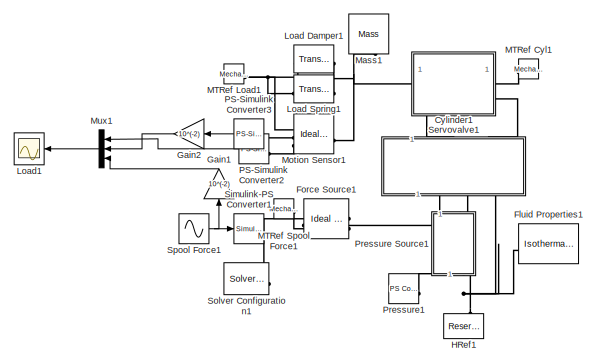
[diagram: root canvas - part 1/2, middle right region]
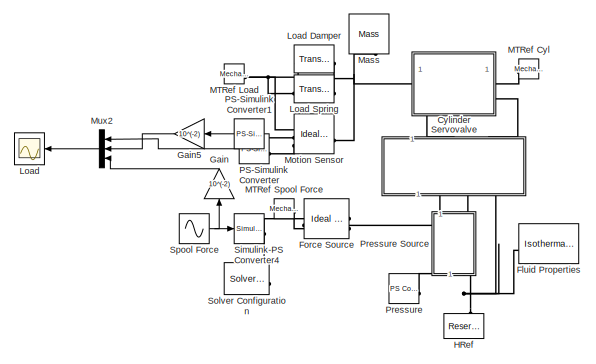
[diagram: root canvas - part 2/2, bottom left region]
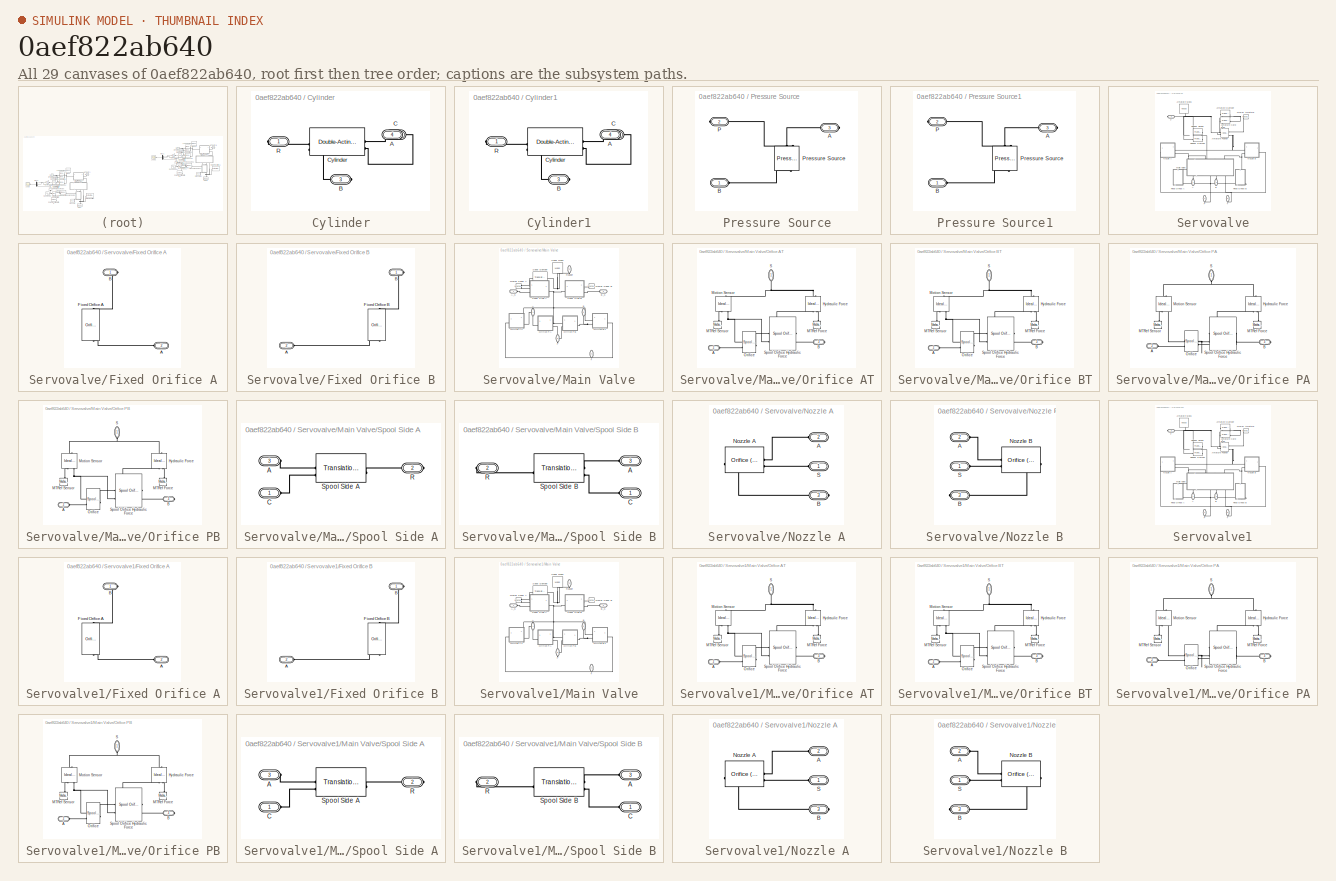
[diagram: thumbnail index - all 29 canvases of the model, root first then tree order]
MODEL slx_0aef822ab640
KIND model
CONFIG AbsTol = auto
CONFIG EnableMultiTasking = off
CONFIG FixedStep = auto
CONFIG MaxStep = auto
CONFIG MinStep = auto
CONFIG RelTol = 1e-3
CONFIG SampleTimeConstraint = Unconstrained
CONFIG SolverName = VariableStepAuto
CONFIG StartTime = 0.0
CONFIG StopTime = 15
BLOCK [Reference]  Fluid Properties  REF=fl_lib/Isothermal Liquid/Utilities/Isothermal Liquid
Properties (IL)
  Commented = on
  LibrarySourceBlock = fl_lib/Isothermal Liquid/Utilities/Isothermal Liquid Properties (IL)
  SourceBlock = fl_lib/Isothermal Liquid/Utilities/Isothermal Liquid\nProperties (IL)
  SourceType = Isothermal Liquid\nProperties (IL)
  Tag = Factory Generic
BLOCK [Reference]  Fluid Properties1  REF=fl_lib/Isothermal Liquid/Utilities/Isothermal Liquid
Properties (IL)
  LibrarySourceBlock = fl_lib/Isothermal Liquid/Utilities/Isothermal Liquid Properties (IL)
  SourceBlock = fl_lib/Isothermal Liquid/Utilities/Isothermal Liquid\nProperties (IL)
  SourceType = Isothermal Liquid\nProperties (IL)
  Tag = Factory Generic
BLOCK [SubSystem] Cylinder
  Commented = on
BLOCK [PMIOPort] Cylinder/A
  Port = 4
  Side = Left
BLOCK [PMIOPort] Cylinder/B
  Port = 3
  Side = Right
BLOCK [PMIOPort] Cylinder/C
  Port = 2
  Side = Left
BLOCK [Reference] Cylinder/Cylinder  REF=SimscapeFluids_lib/Isothermal Liquid/Actuators/Double-Acting
Actuator (IL)
  LibrarySourceBlock = SimscapeFluids_lib/Isothermal Liquid/Actuators/Double-Acting Actuator (IL)
  SourceBlock = SimscapeFluids_lib/Isothermal Liquid/Actuators/Double-Acting\nActuator (IL)
  SourceType = Double-Acting\nActuator (IL)
  Tag = Factory Generic
BLOCK [PMIOPort] Cylinder/R
  Side = Right
BLOCK [SubSystem] Cylinder1
BLOCK [PMIOPort] Cylinder1/A
  Port = 4
  Side = Left
BLOCK [PMIOPort] Cylinder1/B
  Port = 3
  Side = Right
BLOCK [PMIOPort] Cylinder1/C
  Port = 2
  Side = Left
BLOCK [Reference] Cylinder1/Cylinder  REF=SimscapeFluids_lib/Isothermal Liquid/Actuators/Double-Acting
Actuator (IL)
  LibrarySourceBlock = SimscapeFluids_lib/Isothermal Liquid/Actuators/Double-Acting Actuator (IL)
  SourceBlock = SimscapeFluids_lib/Isothermal Liquid/Actuators/Double-Acting\nActuator (IL)
  SourceType = Double-Acting\nActuator (IL)
  Tag = Factory Generic
BLOCK [PMIOPort] Cylinder1/R
  Side = Right
BLOCK [Reference] Force Source  REF=fl_lib/Mechanical/Mechanical Sources/Ideal Force Source
  Commented = on
  SourceBlock = fl_lib/Mechanical/Mechanical Sources/Ideal Force Source
  SourceType = Ideal Force Source
  Tag = Factory Generic
BLOCK [Reference] Force Source1  REF=fl_lib/Mechanical/Mechanical Sources/Ideal Force Source
  SourceBlock = fl_lib/Mechanical/Mechanical Sources/Ideal Force Source
  SourceType = Ideal Force Source
  Tag = Factory Generic
BLOCK [Gain] Gain
  Commented = on
  Gain = 10^(-2)
  NameLocation = right
BLOCK [Gain] Gain1
  Gain = 10^(-2)
  NameLocation = right
BLOCK [Gain] Gain2
  Gain = 10^(-2)
  NameLocation = top
BLOCK [Gain] Gain5
  Commented = on
  Gain = 10^(-2)
  NameLocation = top
BLOCK [Reference] HRef  REF=fl_lib/Isothermal Liquid/Elements/Reservoir (IL)
  Commented = on
  NameLocation = right
  SourceBlock = fl_lib/Isothermal Liquid/Elements/Reservoir (IL)
  SourceType = Reservoir (IL)
  Tag = Factory Generic
BLOCK [Reference] HRef1  REF=fl_lib/Isothermal Liquid/Elements/Reservoir (IL)
  NameLocation = right
  SourceBlock = fl_lib/Isothermal Liquid/Elements/Reservoir (IL)
  SourceType = Reservoir (IL)
  Tag = Factory Generic
BLOCK [Scope] Load
  Commented = on
  Floating = off
  NumInputPorts = 1
  ScopeSpecificationString = Simulink.scopes.TimeScopeBlockCfg('CurrentConfiguration', extmgr.ConfigurationSet(extmgr.Configuration('Core','General UI',true,'MessageLogAutoOpenMode','for warn/fail messages','ShowCloseAll',true,'ShowBringAllForward',true),extmgr.Configuration('Core','Source UI',true,'PlaybackToolbar',true),extmgr.Configuration('Sources','WiredSimulink',true,'PointsPerSignal',50000,'DataLoggingMaxPoints','50000...<+2122ch>
BLOCK [Reference] Load Damper  REF=fl_lib/Mechanical/Translational
Elements/Translational Damper
  Commented = on
  NameLocation = top
  SourceBlock = fl_lib/Mechanical/Translational\nElements/Translational Damper
  SourceType = Translational Damper
  Tag = Factory Generic
BLOCK [Reference] Load Damper1  REF=fl_lib/Mechanical/Translational
Elements/Translational Damper
  NameLocation = top
  SourceBlock = fl_lib/Mechanical/Translational\nElements/Translational Damper
  SourceType = Translational Damper
  Tag = Factory Generic
BLOCK [Reference] Load Spring  REF=fl_lib/Mechanical/Translational
Elements/Translational Spring
  Commented = on
  SourceBlock = fl_lib/Mechanical/Translational\nElements/Translational Spring
  SourceType = Translational Spring
  Tag = Factory Generic
BLOCK [Reference] Load Spring1  REF=fl_lib/Mechanical/Translational
Elements/Translational Spring
  SourceBlock = fl_lib/Mechanical/Translational\nElements/Translational Spring
  SourceType = Translational Spring
  Tag = Factory Generic
BLOCK [Scope] Load1
  Floating = off
  NumInputPorts = 1
  ScopeSpecificationString = Simulink.scopes.TimeScopeBlockCfg('CurrentConfiguration', extmgr.ConfigurationSet(extmgr.Configuration('Core','General UI',true,'MessageLogAutoOpenMode','for warn/fail messages','ShowCloseAll',true,'ShowBringAllForward',true),extmgr.Configuration('Core','Source UI',true,'PlaybackToolbar',true),extmgr.Configuration('Sources','WiredSimulink',true,'PointsPerSignal',50000,'DataLoggingMaxPoints','50000...<+2161ch>
BLOCK [Reference] MTRef Cyl  REF=fl_lib/Mechanical/Translational
Elements/Mechanical
Translational
Reference
  Commented = on
  SourceBlock = fl_lib/Mechanical/Translational\nElements/Mechanical\nTranslational\nReference
  SourceType = Mechanical\nTranslational\nReference
  Tag = Factory Generic
BLOCK [Reference] MTRef Cyl1  REF=fl_lib/Mechanical/Translational
Elements/Mechanical
Translational
Reference
  SourceBlock = fl_lib/Mechanical/Translational\nElements/Mechanical\nTranslational\nReference
  SourceType = Mechanical\nTranslational\nReference
  Tag = Factory Generic
BLOCK [Reference] MTRef Load  REF=fl_lib/Mechanical/Translational
Elements/Mechanical
Translational
Reference
  Commented = on
  NameLocation = top
  SourceBlock = fl_lib/Mechanical/Translational\nElements/Mechanical\nTranslational\nReference
  SourceType = Mechanical\nTranslational\nReference
  Tag = Factory Generic
BLOCK [Reference] MTRef Load1  REF=fl_lib/Mechanical/Translational
Elements/Mechanical
Translational
Reference
  NameLocation = top
  SourceBlock = fl_lib/Mechanical/Translational\nElements/Mechanical\nTranslational\nReference
  SourceType = Mechanical\nTranslational\nReference
  Tag = Factory Generic
BLOCK [Reference] MTRef Spool Force  REF=fl_lib/Mechanical/Translational
Elements/Mechanical
Translational
Reference
  Commented = on
  SourceBlock = fl_lib/Mechanical/Translational\nElements/Mechanical\nTranslational\nReference
  SourceType = Mechanical\nTranslational\nReference
  Tag = Factory Generic
BLOCK [Reference] MTRef Spool Force1  REF=fl_lib/Mechanical/Translational
Elements/Mechanical
Translational
Reference
  SourceBlock = fl_lib/Mechanical/Translational\nElements/Mechanical\nTranslational\nReference
  SourceType = Mechanical\nTranslational\nReference
  Tag = Factory Generic
BLOCK [Reference] Mass  REF=fl_lib/Mechanical/Translational
Elements/Mass
  Commented = on
  NameLocation = right
  SourceBlock = fl_lib/Mechanical/Translational\nElements/Mass
  SourceType = Mass
  Tag = Factory Generic
BLOCK [Reference] Mass1  REF=fl_lib/Mechanical/Translational
Elements/Mass
  NameLocation = right
  SourceBlock = fl_lib/Mechanical/Translational\nElements/Mass
  SourceType = Mass
  Tag = Factory Generic
BLOCK [Reference] Motion Sensor  REF=fl_lib/Mechanical/Mechanical Sensors/Ideal Translational
Motion Sensor
  Commented = on
  SourceBlock = fl_lib/Mechanical/Mechanical Sensors/Ideal Translational\nMotion Sensor
  SourceType = Ideal Translational\nMotion Sensor
  Tag = Factory Generic
BLOCK [Reference] Motion Sensor1  REF=fl_lib/Mechanical/Mechanical Sensors/Ideal Translational
Motion Sensor
  SourceBlock = fl_lib/Mechanical/Mechanical Sensors/Ideal Translational\nMotion Sensor
  SourceType = Ideal Translational\nMotion Sensor
  Tag = Factory Generic
BLOCK [Mux] Mux1
  DisplayOption = bar
  Inputs = 3
BLOCK [Mux] Mux2
  Commented = on
  DisplayOption = bar
  Inputs = 3
BLOCK [Reference] PS-Simulink Converter  REF=nesl_utility/PS-Simulink
Converter
  Commented = on
  SourceBlock = nesl_utility/PS-Simulink\nConverter
  SourceType = PS-Simulink\nConverter
BLOCK [Reference] PS-Simulink Converter1  REF=nesl_utility/PS-Simulink
Converter
  Commented = on
  SourceBlock = nesl_utility/PS-Simulink\nConverter
  SourceType = PS-Simulink\nConverter
BLOCK [Reference] PS-Simulink Converter2  REF=nesl_utility/PS-Simulink
Converter
  SourceBlock = nesl_utility/PS-Simulink\nConverter
  SourceType = PS-Simulink\nConverter
BLOCK [Reference] PS-Simulink Converter3  REF=nesl_utility/PS-Simulink
Converter
  SourceBlock = nesl_utility/PS-Simulink\nConverter
  SourceType = PS-Simulink\nConverter
BLOCK [Reference] Pressure  REF=fl_lib/Physical Signals/Sources/PS Constant
  Commented = on
  SourceBlock = fl_lib/Physical Signals/Sources/PS Constant
  SourceType = PS Constant
BLOCK [SubSystem] Pressure Source
  Commented = on
BLOCK [PMIOPort] Pressure Source/A
  Port = 3
  Side = Right
BLOCK [PMIOPort] Pressure Source/B
  Side = Left
BLOCK [PMIOPort] Pressure Source/P
  Port = 2
  Side = Right
BLOCK [Reference] Pressure Source/Pressure Source  REF=fl_lib/Isothermal Liquid/Sources/Pressure Source (IL)
  NameLocation = left
  SourceBlock = fl_lib/Isothermal Liquid/Sources/Pressure Source (IL)
  SourceType = Pressure Source (IL)
  Tag = Factory Generic
BLOCK [SubSystem] Pressure Source1
BLOCK [PMIOPort] Pressure Source1/A
  Port = 3
  Side = Right
BLOCK [PMIOPort] Pressure Source1/B
  Side = Left
BLOCK [PMIOPort] Pressure Source1/P
  Port = 2
  Side = Right
BLOCK [Reference] Pressure Source1/Pressure Source  REF=fl_lib/Isothermal Liquid/Sources/Pressure Source (IL)
  NameLocation = left
  SourceBlock = fl_lib/Isothermal Liquid/Sources/Pressure Source (IL)
  SourceType = Pressure Source (IL)
  Tag = Factory Generic
BLOCK [Reference] Pressure1  REF=fl_lib/Physical Signals/Sources/PS Constant
  SourceBlock = fl_lib/Physical Signals/Sources/PS Constant
  SourceType = PS Constant
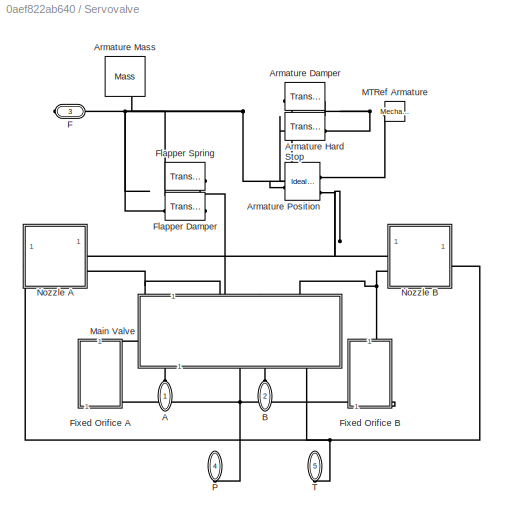
BLOCK [SubSystem] Servovalve
  Commented = on
  NameLocation = right
  Tag = PublishSubsystem
BLOCK [PMIOPort] Servovalve/A
  NameLocation = left
  Side = Left
BLOCK [Reference] Servovalve/Armature Damper  REF=fl_lib/Mechanical/Translational
Elements/Translational Damper
  NameLocation = top
  SourceBlock = fl_lib/Mechanical/Translational\nElements/Translational Damper
  SourceType = Translational Damper
  Tag = Factory Generic
BLOCK [Reference] Servovalve/Armature Hard Stop  REF=fl_lib/Mechanical/Translational
Elements/Translational Hard
Stop
  SourceBlock = fl_lib/Mechanical/Translational\nElements/Translational Hard\nStop
  SourceType = Translational Hard\nStop
  Tag = Factory Generic
BLOCK [Reference] Servovalve/Armature Mass  REF=fl_lib/Mechanical/Translational
Elements/Mass
  NameLocation = left
  SourceBlock = fl_lib/Mechanical/Translational\nElements/Mass
  SourceType = Mass
  Tag = Factory Generic
BLOCK [Reference] Servovalve/Armature Position  REF=fl_lib/Mechanical/Mechanical Sensors/Ideal Translational
Motion Sensor
  SourceBlock = fl_lib/Mechanical/Mechanical Sensors/Ideal Translational\nMotion Sensor
  SourceType = Ideal Translational\nMotion Sensor
  Tag = Factory Generic
BLOCK [PMIOPort] Servovalve/B
  NameLocation = left
  Port = 2
  Side = Left
BLOCK [PMIOPort] Servovalve/F
  Port = 3
  Side = Right
BLOCK [SubSystem] Servovalve/Fixed Orifice A
BLOCK [PMIOPort] Servovalve/Fixed Orifice A/A
  Port = 2
  Side = Left
BLOCK [PMIOPort] Servovalve/Fixed Orifice A/B
  Side = Right
BLOCK [Reference] Servovalve/Fixed Orifice A/Fixed Orifice A  REF=SimscapeFluids_lib/Isothermal Liquid/Valves & Orifices/Orifices/Orifice (IL)
  NameLocation = left
  SourceBlock = SimscapeFluids_lib/Isothermal Liquid/Valves & Orifices/Orifices/Orifice (IL)
  SourceType = Orifice (IL)
  Tag = Factory Generic
BLOCK [SubSystem] Servovalve/Fixed Orifice B
BLOCK [PMIOPort] Servovalve/Fixed Orifice B/A
  Port = 2
  Side = Left
BLOCK [PMIOPort] Servovalve/Fixed Orifice B/B
  Side = Right
BLOCK [Reference] Servovalve/Fixed Orifice B/Fixed Orifice B  REF=SimscapeFluids_lib/Isothermal Liquid/Valves & Orifices/Orifices/Orifice (IL)
  NameLocation = right
  SourceBlock = SimscapeFluids_lib/Isothermal Liquid/Valves & Orifices/Orifices/Orifice (IL)
  SourceType = Orifice (IL)
  Tag = Factory Generic
BLOCK [Reference] Servovalve/Flapper Damper  REF=fl_lib/Mechanical/Translational
Elements/Translational Damper
  SourceBlock = fl_lib/Mechanical/Translational\nElements/Translational Damper
  SourceType = Translational Damper
  Tag = Factory Generic
BLOCK [Reference] Servovalve/Flapper Spring  REF=fl_lib/Mechanical/Translational
Elements/Translational Spring
  NameLocation = top
  SourceBlock = fl_lib/Mechanical/Translational\nElements/Translational Spring
  SourceType = Translational Spring
  Tag = Factory Generic
BLOCK [Reference] Servovalve/MTRef Armature  REF=fl_lib/Mechanical/Translational
Elements/Mechanical
Translational
Reference
  NameLocation = top
  SourceBlock = fl_lib/Mechanical/Translational\nElements/Mechanical\nTranslational\nReference
  SourceType = Mechanical\nTranslational\nReference
  Tag = Factory Generic
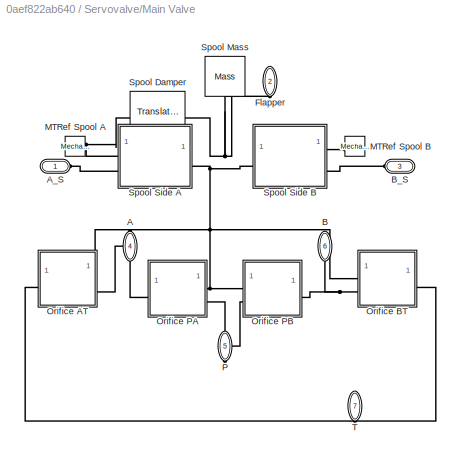
BLOCK [SubSystem] Servovalve/Main Valve
  NameLocation = left
  Tag = PublishSubsystem
BLOCK [PMIOPort] Servovalve/Main Valve/A
  NameLocation = right
  Port = 4
  Side = Right
BLOCK [PMIOPort] Servovalve/Main Valve/A_S
  Side = Left
BLOCK [PMIOPort] Servovalve/Main Valve/B
  NameLocation = left
  Port = 6
  Side = Right
BLOCK [PMIOPort] Servovalve/Main Valve/B_S
  Port = 3
  Side = Left
BLOCK [PMIOPort] Servovalve/Main Valve/Flapper
  NameLocation = right
  Port = 2
  Side = Left
BLOCK [Reference] Servovalve/Main Valve/MTRef Spool A  REF=fl_lib/Mechanical/Translational
Elements/Mechanical
Translational
Reference
  NameLocation = top
  SourceBlock = fl_lib/Mechanical/Translational\nElements/Mechanical\nTranslational\nReference
  SourceType = Mechanical\nTranslational\nReference
  Tag = Factory Generic
BLOCK [Reference] Servovalve/Main Valve/MTRef Spool B  REF=fl_lib/Mechanical/Translational
Elements/Mechanical
Translational
Reference
  NameLocation = top
  SourceBlock = fl_lib/Mechanical/Translational\nElements/Mechanical\nTranslational\nReference
  SourceType = Mechanical\nTranslational\nReference
  Tag = Factory Generic
BLOCK [SubSystem] Servovalve/Main Valve/Orifice AT
  Tag = PublishSubsystem
BLOCK [PMIOPort] Servovalve/Main Valve/Orifice AT/A
  Port = 2
  Side = Left
BLOCK [PMIOPort] Servovalve/Main Valve/Orifice AT/B
  Port = 3
  Side = Right
BLOCK [Reference] Servovalve/Main Valve/Orifice AT/Hydraulic Force  REF=fl_lib/Mechanical/Mechanical Sources/Ideal Force Source
  NameLocation = left
  SourceBlock = fl_lib/Mechanical/Mechanical Sources/Ideal Force Source
  SourceType = Ideal Force Source
  Tag = Factory Generic
BLOCK [Reference] Servovalve/Main Valve/Orifice AT/MTRef Force  REF=fl_lib/Mechanical/Translational
Elements/Mechanical
Translational
Reference
  NameLocation = right
  SourceBlock = fl_lib/Mechanical/Translational\nElements/Mechanical\nTranslational\nReference
  SourceType = Mechanical\nTranslational\nReference
  Tag = Factory Generic
BLOCK [Reference] Servovalve/Main Valve/Orifice AT/MTRef Sensor  REF=fl_lib/Mechanical/Translational
Elements/Mechanical
Translational
Reference
  NameLocation = left
  SourceBlock = fl_lib/Mechanical/Translational\nElements/Mechanical\nTranslational\nReference
  SourceType = Mechanical\nTranslational\nReference
  Tag = Factory Generic
BLOCK [Reference] Servovalve/Main Valve/Orifice AT/Motion Sensor  REF=fl_lib/Mechanical/Mechanical Sensors/Ideal Translational
Motion Sensor
  NameLocation = right
  SourceBlock = fl_lib/Mechanical/Mechanical Sensors/Ideal Translational\nMotion Sensor
  SourceType = Ideal Translational\nMotion Sensor
  Tag = Factory Generic
BLOCK [Reference] Servovalve/Main Valve/Orifice AT/Orifice  REF=SimscapeFluids_lib/Isothermal Liquid/Valves & Orifices/Orifices/Spool Orifice (IL)
  SourceBlock = SimscapeFluids_lib/Isothermal Liquid/Valves & Orifices/Orifices/Spool Orifice (IL)
  SourceType = Spool Orifice (IL)
  Tag = Factory Generic
BLOCK [PMIOPort] Servovalve/Main Valve/Orifice AT/S
  NameLocation = left
  Side = Left
BLOCK [Reference] Servovalve/Main Valve/Orifice AT/Spool Orifice Hydraulic Force  REF=SimscapeFluids_lib/Isothermal Liquid/Valves & Orifices/Valve Actuators &
Forces/Spool Orifice Flow
Force (IL)
  LibrarySourceBlock = SimscapeFluids_lib/Isothermal Liquid/Valves & Orifices/Valve Actuators & Forces/Spool Orifice Flow Force (IL)
  SourceBlock = SimscapeFluids_lib/Isothermal Liquid/Valves & Orifices/Valve Actuators &\nForces/Spool Orifice Flow\nForce (IL)
  SourceType = Spool Orifice Flow\nForce (IL)
BLOCK [SubSystem] Servovalve/Main Valve/Orifice BT
BLOCK [PMIOPort] Servovalve/Main Valve/Orifice BT/A
  Port = 2
  Side = Left
BLOCK [PMIOPort] Servovalve/Main Valve/Orifice BT/B
  Port = 3
  Side = Right
BLOCK [Reference] Servovalve/Main Valve/Orifice BT/Hydraulic Force  REF=fl_lib/Mechanical/Mechanical Sources/Ideal Force Source
  NameLocation = right
  SourceBlock = fl_lib/Mechanical/Mechanical Sources/Ideal Force Source
  SourceType = Ideal Force Source
  Tag = Factory Generic
BLOCK [Reference] Servovalve/Main Valve/Orifice BT/MTRef Force  REF=fl_lib/Mechanical/Translational
Elements/Mechanical
Translational
Reference
  NameLocation = right
  SourceBlock = fl_lib/Mechanical/Translational\nElements/Mechanical\nTranslational\nReference
  SourceType = Mechanical\nTranslational\nReference
  Tag = Factory Generic
BLOCK [Reference] Servovalve/Main Valve/Orifice BT/MTRef Sensor  REF=fl_lib/Mechanical/Translational
Elements/Mechanical
Translational
Reference
  NameLocation = left
  SourceBlock = fl_lib/Mechanical/Translational\nElements/Mechanical\nTranslational\nReference
  SourceType = Mechanical\nTranslational\nReference
  Tag = Factory Generic
BLOCK [Reference] Servovalve/Main Valve/Orifice BT/Motion Sensor  REF=fl_lib/Mechanical/Mechanical Sensors/Ideal Translational
Motion Sensor
  NameLocation = right
  SourceBlock = fl_lib/Mechanical/Mechanical Sensors/Ideal Translational\nMotion Sensor
  SourceType = Ideal Translational\nMotion Sensor
  Tag = Factory Generic
BLOCK [Reference] Servovalve/Main Valve/Orifice BT/Orifice  REF=SimscapeFluids_lib/Isothermal Liquid/Valves & Orifices/Orifices/Spool Orifice (IL)
  SourceBlock = SimscapeFluids_lib/Isothermal Liquid/Valves & Orifices/Orifices/Spool Orifice (IL)
  SourceType = Spool Orifice (IL)
  Tag = Factory Generic
BLOCK [PMIOPort] Servovalve/Main Valve/Orifice BT/S
  NameLocation = left
  Side = Left
BLOCK [Reference] Servovalve/Main Valve/Orifice BT/Spool Orifice Hydraulic Force  REF=SimscapeFluids_lib/Isothermal Liquid/Valves & Orifices/Valve Actuators &
Forces/Spool Orifice Flow
Force (IL)
  LibrarySourceBlock = SimscapeFluids_lib/Isothermal Liquid/Valves & Orifices/Valve Actuators & Forces/Spool Orifice Flow Force (IL)
  SourceBlock = SimscapeFluids_lib/Isothermal Liquid/Valves & Orifices/Valve Actuators &\nForces/Spool Orifice Flow\nForce (IL)
  SourceType = Spool Orifice Flow\nForce (IL)
BLOCK [SubSystem] Servovalve/Main Valve/Orifice PA
BLOCK [PMIOPort] Servovalve/Main Valve/Orifice PA/A
  Port = 2
  Side = Left
BLOCK [PMIOPort] Servovalve/Main Valve/Orifice PA/B
  Port = 3
  Side = Right
BLOCK [Reference] Servovalve/Main Valve/Orifice PA/Hydraulic Force  REF=fl_lib/Mechanical/Mechanical Sources/Ideal Force Source
  NameLocation = left
  SourceBlock = fl_lib/Mechanical/Mechanical Sources/Ideal Force Source
  SourceType = Ideal Force Source
  Tag = Factory Generic
BLOCK [Reference] Servovalve/Main Valve/Orifice PA/MTRef Force  REF=fl_lib/Mechanical/Translational
Elements/Mechanical
Translational
Reference
  NameLocation = right
  SourceBlock = fl_lib/Mechanical/Translational\nElements/Mechanical\nTranslational\nReference
  SourceType = Mechanical\nTranslational\nReference
  Tag = Factory Generic
BLOCK [Reference] Servovalve/Main Valve/Orifice PA/MTRef Sensor  REF=fl_lib/Mechanical/Translational
Elements/Mechanical
Translational
Reference
  NameLocation = left
  SourceBlock = fl_lib/Mechanical/Translational\nElements/Mechanical\nTranslational\nReference
  SourceType = Mechanical\nTranslational\nReference
  Tag = Factory Generic
BLOCK [Reference] Servovalve/Main Valve/Orifice PA/Motion Sensor  REF=fl_lib/Mechanical/Mechanical Sensors/Ideal Translational
Motion Sensor
  NameLocation = right
  SourceBlock = fl_lib/Mechanical/Mechanical Sensors/Ideal Translational\nMotion Sensor
  SourceType = Ideal Translational\nMotion Sensor
  Tag = Factory Generic
BLOCK [Reference] Servovalve/Main Valve/Orifice PA/Orifice  REF=SimscapeFluids_lib/Isothermal Liquid/Valves & Orifices/Orifices/Spool Orifice (IL)
  SourceBlock = SimscapeFluids_lib/Isothermal Liquid/Valves & Orifices/Orifices/Spool Orifice (IL)
  SourceType = Spool Orifice (IL)
  Tag = Factory Generic
BLOCK [PMIOPort] Servovalve/Main Valve/Orifice PA/S
  NameLocation = left
  Side = Left
BLOCK [Reference] Servovalve/Main Valve/Orifice PA/Spool Orifice Hydraulic Force  REF=SimscapeFluids_lib/Isothermal Liquid/Valves & Orifices/Valve Actuators &
Forces/Spool Orifice Flow
Force (IL)
  LibrarySourceBlock = SimscapeFluids_lib/Isothermal Liquid/Valves & Orifices/Valve Actuators & Forces/Spool Orifice Flow Force (IL)
  SourceBlock = SimscapeFluids_lib/Isothermal Liquid/Valves & Orifices/Valve Actuators &\nForces/Spool Orifice Flow\nForce (IL)
  SourceType = Spool Orifice Flow\nForce (IL)
BLOCK [SubSystem] Servovalve/Main Valve/Orifice PB
BLOCK [PMIOPort] Servovalve/Main Valve/Orifice PB/A
  Port = 2
  Side = Left
BLOCK [PMIOPort] Servovalve/Main Valve/Orifice PB/B
  Port = 3
  Side = Right
BLOCK [Reference] Servovalve/Main Valve/Orifice PB/Hydraulic Force  REF=fl_lib/Mechanical/Mechanical Sources/Ideal Force Source
  NameLocation = left
  SourceBlock = fl_lib/Mechanical/Mechanical Sources/Ideal Force Source
  SourceType = Ideal Force Source
  Tag = Factory Generic
BLOCK [Reference] Servovalve/Main Valve/Orifice PB/MTRef Force  REF=fl_lib/Mechanical/Translational
Elements/Mechanical
Translational
Reference
  NameLocation = right
  SourceBlock = fl_lib/Mechanical/Translational\nElements/Mechanical\nTranslational\nReference
  SourceType = Mechanical\nTranslational\nReference
  Tag = Factory Generic
BLOCK [Reference] Servovalve/Main Valve/Orifice PB/MTRef Sensor  REF=fl_lib/Mechanical/Translational
Elements/Mechanical
Translational
Reference
  NameLocation = left
  SourceBlock = fl_lib/Mechanical/Translational\nElements/Mechanical\nTranslational\nReference
  SourceType = Mechanical\nTranslational\nReference
  Tag = Factory Generic
BLOCK [Reference] Servovalve/Main Valve/Orifice PB/Motion Sensor  REF=fl_lib/Mechanical/Mechanical Sensors/Ideal Translational
Motion Sensor
  NameLocation = right
  SourceBlock = fl_lib/Mechanical/Mechanical Sensors/Ideal Translational\nMotion Sensor
  SourceType = Ideal Translational\nMotion Sensor
  Tag = Factory Generic
BLOCK [Reference] Servovalve/Main Valve/Orifice PB/Orifice  REF=SimscapeFluids_lib/Isothermal Liquid/Valves & Orifices/Orifices/Spool Orifice (IL)
  SourceBlock = SimscapeFluids_lib/Isothermal Liquid/Valves & Orifices/Orifices/Spool Orifice (IL)
  SourceType = Spool Orifice (IL)
  Tag = Factory Generic
BLOCK [PMIOPort] Servovalve/Main Valve/Orifice PB/S
  NameLocation = left
  Side = Left
BLOCK [Reference] Servovalve/Main Valve/Orifice PB/Spool Orifice Hydraulic Force  REF=SimscapeFluids_lib/Isothermal Liquid/Valves & Orifices/Valve Actuators &
Forces/Spool Orifice Flow
Force (IL)
  LibrarySourceBlock = SimscapeFluids_lib/Isothermal Liquid/Valves & Orifices/Valve Actuators & Forces/Spool Orifice Flow Force (IL)
  SourceBlock = SimscapeFluids_lib/Isothermal Liquid/Valves & Orifices/Valve Actuators &\nForces/Spool Orifice Flow\nForce (IL)
  SourceType = Spool Orifice Flow\nForce (IL)
BLOCK [PMIOPort] Servovalve/Main Valve/P
  NameLocation = right
  Port = 5
  Side = Right
BLOCK [Reference] Servovalve/Main Valve/Spool Damper  REF=fl_lib/Mechanical/Translational
Elements/Translational Damper
  NameLocation = top
  SourceBlock = fl_lib/Mechanical/Translational\nElements/Translational Damper
  SourceType = Translational Damper
  Tag = Factory Generic
BLOCK [Reference] Servovalve/Main Valve/Spool Mass  REF=fl_lib/Mechanical/Translational
Elements/Mass
  NameLocation = left
  SourceBlock = fl_lib/Mechanical/Translational\nElements/Mass
  SourceType = Mass
  Tag = Factory Generic
BLOCK [SubSystem] Servovalve/Main Valve/Spool Side A
BLOCK [PMIOPort] Servovalve/Main Valve/Spool Side A/A
  Port = 3
  Side = Left
BLOCK [PMIOPort] Servovalve/Main Valve/Spool Side A/C
  Side = Left
BLOCK [PMIOPort] Servovalve/Main Valve/Spool Side A/R
  Port = 2
  Side = Right
BLOCK [Reference] Servovalve/Main Valve/Spool Side A/Spool Side A  REF=fl_lib/Isothermal Liquid/Elements/Translational
Mechanical Converter
(IL)
  LibrarySourceBlock = fl_lib/Isothermal Liquid/Elements/Translational Mechanical Converter (IL)
  SourceBlock = fl_lib/Isothermal Liquid/Elements/Translational\nMechanical Converter\n(IL)
  SourceType = Translational\nMechanical Converter\n(IL)
  Tag = Factory Generic
BLOCK [SubSystem] Servovalve/Main Valve/Spool Side B
BLOCK [PMIOPort] Servovalve/Main Valve/Spool Side B/A
  Port = 3
  Side = Left
BLOCK [PMIOPort] Servovalve/Main Valve/Spool Side B/C
  Side = Left
BLOCK [PMIOPort] Servovalve/Main Valve/Spool Side B/R
  Port = 2
  Side = Right
BLOCK [Reference] Servovalve/Main Valve/Spool Side B/Spool Side B  REF=fl_lib/Isothermal Liquid/Elements/Translational
Mechanical Converter
(IL)
  LibrarySourceBlock = fl_lib/Isothermal Liquid/Elements/Translational Mechanical Converter (IL)
  SourceBlock = fl_lib/Isothermal Liquid/Elements/Translational\nMechanical Converter\n(IL)
  SourceType = Translational\nMechanical Converter\n(IL)
  Tag = Factory Generic
BLOCK [PMIOPort] Servovalve/Main Valve/T
  NameLocation = left
  Port = 7
  Side = Right
BLOCK [SubSystem] Servovalve/Nozzle A
BLOCK [PMIOPort] Servovalve/Nozzle A/A
  Port = 2
  Side = Left
BLOCK [PMIOPort] Servovalve/Nozzle A/B
  Port = 3
  Side = Right
BLOCK [Reference] Servovalve/Nozzle A/Nozzle A  REF=SimscapeFluids_lib/Isothermal Liquid/Valves & Orifices/Orifices/Orifice (IL)
  NameLocation = top
  SourceBlock = SimscapeFluids_lib/Isothermal Liquid/Valves & Orifices/Orifices/Orifice (IL)
  SourceType = Orifice (IL)
  Tag = Factory Generic
BLOCK [PMIOPort] Servovalve/Nozzle A/S
  Side = Left
BLOCK [SubSystem] Servovalve/Nozzle B
BLOCK [PMIOPort] Servovalve/Nozzle B/A
  Port = 2
  Side = Left
BLOCK [PMIOPort] Servovalve/Nozzle B/B
  Port = 3
  Side = Right
BLOCK [Reference] Servovalve/Nozzle B/Nozzle B  REF=SimscapeFluids_lib/Isothermal Liquid/Valves & Orifices/Orifices/Orifice (IL)
  NameLocation = top
  SourceBlock = SimscapeFluids_lib/Isothermal Liquid/Valves & Orifices/Orifices/Orifice (IL)
  SourceType = Orifice (IL)
  Tag = Factory Generic
BLOCK [PMIOPort] Servovalve/Nozzle B/S
  Side = Left
BLOCK [PMIOPort] Servovalve/P
  NameLocation = right
  Port = 4
  Side = Right
BLOCK [PMIOPort] Servovalve/T
  NameLocation = right
  Port = 5
  Side = Right
BLOCK [SubSystem] Servovalve1
  NameLocation = right
  Tag = PublishSubsystem
BLOCK [PMIOPort] Servovalve1/A
  NameLocation = left
  Side = Left
BLOCK [Reference] Servovalve1/Armature Damper  REF=fl_lib/Mechanical/Translational
Elements/Translational Damper
  NameLocation = top
  SourceBlock = fl_lib/Mechanical/Translational\nElements/Translational Damper
  SourceType = Translational Damper
  Tag = Factory Generic
BLOCK [Reference] Servovalve1/Armature Hard Stop  REF=fl_lib/Mechanical/Translational
Elements/Translational Hard
Stop
  SourceBlock = fl_lib/Mechanical/Translational\nElements/Translational Hard\nStop
  SourceType = Translational Hard\nStop
  Tag = Factory Generic
BLOCK [Reference] Servovalve1/Armature Mass  REF=fl_lib/Mechanical/Translational
Elements/Mass
  NameLocation = left
  SourceBlock = fl_lib/Mechanical/Translational\nElements/Mass
  SourceType = Mass
  Tag = Factory Generic
BLOCK [Reference] Servovalve1/Armature Position  REF=fl_lib/Mechanical/Mechanical Sensors/Ideal Translational
Motion Sensor
  SourceBlock = fl_lib/Mechanical/Mechanical Sensors/Ideal Translational\nMotion Sensor
  SourceType = Ideal Translational\nMotion Sensor
  Tag = Factory Generic
BLOCK [PMIOPort] Servovalve1/B
  NameLocation = left
  Port = 2
  Side = Left
BLOCK [PMIOPort] Servovalve1/F
  Port = 3
  Side = Right
BLOCK [SubSystem] Servovalve1/Fixed Orifice A
BLOCK [PMIOPort] Servovalve1/Fixed Orifice A/A
  Port = 2
  Side = Left
BLOCK [PMIOPort] Servovalve1/Fixed Orifice A/B
  Side = Right
BLOCK [Reference] Servovalve1/Fixed Orifice A/Fixed Orifice A  REF=SimscapeFluids_lib/Isothermal Liquid/Valves & Orifices/Orifices/Orifice (IL)
  NameLocation = left
  SourceBlock = SimscapeFluids_lib/Isothermal Liquid/Valves & Orifices/Orifices/Orifice (IL)
  SourceType = Orifice (IL)
  Tag = Factory Generic
BLOCK [SubSystem] Servovalve1/Fixed Orifice B
BLOCK [PMIOPort] Servovalve1/Fixed Orifice B/A
  Port = 2
  Side = Left
BLOCK [PMIOPort] Servovalve1/Fixed Orifice B/B
  Side = Right
BLOCK [Reference] Servovalve1/Fixed Orifice B/Fixed Orifice B  REF=SimscapeFluids_lib/Isothermal Liquid/Valves & Orifices/Orifices/Orifice (IL)
  NameLocation = right
  SourceBlock = SimscapeFluids_lib/Isothermal Liquid/Valves & Orifices/Orifices/Orifice (IL)
  SourceType = Orifice (IL)
  Tag = Factory Generic
BLOCK [Reference] Servovalve1/Flapper Damper  REF=fl_lib/Mechanical/Translational
Elements/Translational Damper
  SourceBlock = fl_lib/Mechanical/Translational\nElements/Translational Damper
  SourceType = Translational Damper
  Tag = Factory Generic
BLOCK [Reference] Servovalve1/Flapper Spring  REF=fl_lib/Mechanical/Translational
Elements/Translational Spring
  NameLocation = top
  SourceBlock = fl_lib/Mechanical/Translational\nElements/Translational Spring
  SourceType = Translational Spring
  Tag = Factory Generic
BLOCK [Reference] Servovalve1/MTRef Armature  REF=fl_lib/Mechanical/Translational
Elements/Mechanical
Translational
Reference
  NameLocation = top
  SourceBlock = fl_lib/Mechanical/Translational\nElements/Mechanical\nTranslational\nReference
  SourceType = Mechanical\nTranslational\nReference
  Tag = Factory Generic
BLOCK [SubSystem] Servovalve1/Main Valve
  NameLocation = left
  Tag = PublishSubsystem
BLOCK [PMIOPort] Servovalve1/Main Valve/A
  NameLocation = right
  Port = 4
  Side = Right
BLOCK [PMIOPort] Servovalve1/Main Valve/A_S
  Side = Left
BLOCK [PMIOPort] Servovalve1/Main Valve/B
  NameLocation = left
  Port = 6
  Side = Right
BLOCK [PMIOPort] Servovalve1/Main Valve/B_S
  Port = 3
  Side = Left
BLOCK [PMIOPort] Servovalve1/Main Valve/Flapper
  NameLocation = right
  Port = 2
  Side = Left
BLOCK [Reference] Servovalve1/Main Valve/MTRef Spool A  REF=fl_lib/Mechanical/Translational
Elements/Mechanical
Translational
Reference
  NameLocation = top
  SourceBlock = fl_lib/Mechanical/Translational\nElements/Mechanical\nTranslational\nReference
  SourceType = Mechanical\nTranslational\nReference
  Tag = Factory Generic
BLOCK [Reference] Servovalve1/Main Valve/MTRef Spool B  REF=fl_lib/Mechanical/Translational
Elements/Mechanical
Translational
Reference
  NameLocation = top
  SourceBlock = fl_lib/Mechanical/Translational\nElements/Mechanical\nTranslational\nReference
  SourceType = Mechanical\nTranslational\nReference
  Tag = Factory Generic
BLOCK [SubSystem] Servovalve1/Main Valve/Orifice AT
  Tag = PublishSubsystem
BLOCK [PMIOPort] Servovalve1/Main Valve/Orifice AT/A
  Port = 2
  Side = Left
BLOCK [PMIOPort] Servovalve1/Main Valve/Orifice AT/B
  Port = 3
  Side = Right
BLOCK [Reference] Servovalve1/Main Valve/Orifice AT/Hydraulic Force  REF=fl_lib/Mechanical/Mechanical Sources/Ideal Force Source
  NameLocation = left
  SourceBlock = fl_lib/Mechanical/Mechanical Sources/Ideal Force Source
  SourceType = Ideal Force Source
  Tag = Factory Generic
BLOCK [Reference] Servovalve1/Main Valve/Orifice AT/MTRef Force  REF=fl_lib/Mechanical/Translational
Elements/Mechanical
Translational
Reference
  NameLocation = right
  SourceBlock = fl_lib/Mechanical/Translational\nElements/Mechanical\nTranslational\nReference
  SourceType = Mechanical\nTranslational\nReference
  Tag = Factory Generic
BLOCK [Reference] Servovalve1/Main Valve/Orifice AT/MTRef Sensor  REF=fl_lib/Mechanical/Translational
Elements/Mechanical
Translational
Reference
  NameLocation = left
  SourceBlock = fl_lib/Mechanical/Translational\nElements/Mechanical\nTranslational\nReference
  SourceType = Mechanical\nTranslational\nReference
  Tag = Factory Generic
BLOCK [Reference] Servovalve1/Main Valve/Orifice AT/Motion Sensor  REF=fl_lib/Mechanical/Mechanical Sensors/Ideal Translational
Motion Sensor
  NameLocation = right
  SourceBlock = fl_lib/Mechanical/Mechanical Sensors/Ideal Translational\nMotion Sensor
  SourceType = Ideal Translational\nMotion Sensor
  Tag = Factory Generic
BLOCK [Reference] Servovalve1/Main Valve/Orifice AT/Orifice  REF=SimscapeFluids_lib/Isothermal Liquid/Valves & Orifices/Orifices/Spool Orifice (IL)
  SourceBlock = SimscapeFluids_lib/Isothermal Liquid/Valves & Orifices/Orifices/Spool Orifice (IL)
  SourceType = Spool Orifice (IL)
  Tag = Factory Generic
BLOCK [PMIOPort] Servovalve1/Main Valve/Orifice AT/S
  NameLocation = left
  Side = Left
BLOCK [Reference] Servovalve1/Main Valve/Orifice AT/Spool Orifice Hydraulic Force  REF=SimscapeFluids_lib/Isothermal Liquid/Valves & Orifices/Valve Actuators &
Forces/Spool Orifice Flow
Force (IL)
  LibrarySourceBlock = SimscapeFluids_lib/Isothermal Liquid/Valves & Orifices/Valve Actuators & Forces/Spool Orifice Flow Force (IL)
  SourceBlock = SimscapeFluids_lib/Isothermal Liquid/Valves & Orifices/Valve Actuators &\nForces/Spool Orifice Flow\nForce (IL)
  SourceType = Spool Orifice Flow\nForce (IL)
BLOCK [SubSystem] Servovalve1/Main Valve/Orifice BT
BLOCK [PMIOPort] Servovalve1/Main Valve/Orifice BT/A
  Port = 2
  Side = Left
BLOCK [PMIOPort] Servovalve1/Main Valve/Orifice BT/B
  Port = 3
  Side = Right
BLOCK [Reference] Servovalve1/Main Valve/Orifice BT/Hydraulic Force  REF=fl_lib/Mechanical/Mechanical Sources/Ideal Force Source
  NameLocation = right
  SourceBlock = fl_lib/Mechanical/Mechanical Sources/Ideal Force Source
  SourceType = Ideal Force Source
  Tag = Factory Generic
BLOCK [Reference] Servovalve1/Main Valve/Orifice BT/MTRef Force  REF=fl_lib/Mechanical/Translational
Elements/Mechanical
Translational
Reference
  NameLocation = right
  SourceBlock = fl_lib/Mechanical/Translational\nElements/Mechanical\nTranslational\nReference
  SourceType = Mechanical\nTranslational\nReference
  Tag = Factory Generic
BLOCK [Reference] Servovalve1/Main Valve/Orifice BT/MTRef Sensor  REF=fl_lib/Mechanical/Translational
Elements/Mechanical
Translational
Reference
  NameLocation = left
  SourceBlock = fl_lib/Mechanical/Translational\nElements/Mechanical\nTranslational\nReference
  SourceType = Mechanical\nTranslational\nReference
  Tag = Factory Generic
BLOCK [Reference] Servovalve1/Main Valve/Orifice BT/Motion Sensor  REF=fl_lib/Mechanical/Mechanical Sensors/Ideal Translational
Motion Sensor
  NameLocation = right
  SourceBlock = fl_lib/Mechanical/Mechanical Sensors/Ideal Translational\nMotion Sensor
  SourceType = Ideal Translational\nMotion Sensor
  Tag = Factory Generic
BLOCK [Reference] Servovalve1/Main Valve/Orifice BT/Orifice  REF=SimscapeFluids_lib/Isothermal Liquid/Valves & Orifices/Orifices/Spool Orifice (IL)
  SourceBlock = SimscapeFluids_lib/Isothermal Liquid/Valves & Orifices/Orifices/Spool Orifice (IL)
  SourceType = Spool Orifice (IL)
  Tag = Factory Generic
BLOCK [PMIOPort] Servovalve1/Main Valve/Orifice BT/S
  NameLocation = left
  Side = Left
BLOCK [Reference] Servovalve1/Main Valve/Orifice BT/Spool Orifice Hydraulic Force  REF=SimscapeFluids_lib/Isothermal Liquid/Valves & Orifices/Valve Actuators &
Forces/Spool Orifice Flow
Force (IL)
  LibrarySourceBlock = SimscapeFluids_lib/Isothermal Liquid/Valves & Orifices/Valve Actuators & Forces/Spool Orifice Flow Force (IL)
  SourceBlock = SimscapeFluids_lib/Isothermal Liquid/Valves & Orifices/Valve Actuators &\nForces/Spool Orifice Flow\nForce (IL)
  SourceType = Spool Orifice Flow\nForce (IL)
BLOCK [SubSystem] Servovalve1/Main Valve/Orifice PA
BLOCK [PMIOPort] Servovalve1/Main Valve/Orifice PA/A
  Port = 2
  Side = Left
BLOCK [PMIOPort] Servovalve1/Main Valve/Orifice PA/B
  Port = 3
  Side = Right
BLOCK [Reference] Servovalve1/Main Valve/Orifice PA/Hydraulic Force  REF=fl_lib/Mechanical/Mechanical Sources/Ideal Force Source
  NameLocation = left
  SourceBlock = fl_lib/Mechanical/Mechanical Sources/Ideal Force Source
  SourceType = Ideal Force Source
  Tag = Factory Generic
BLOCK [Reference] Servovalve1/Main Valve/Orifice PA/MTRef Force  REF=fl_lib/Mechanical/Translational
Elements/Mechanical
Translational
Reference
  NameLocation = right
  SourceBlock = fl_lib/Mechanical/Translational\nElements/Mechanical\nTranslational\nReference
  SourceType = Mechanical\nTranslational\nReference
  Tag = Factory Generic
BLOCK [Reference] Servovalve1/Main Valve/Orifice PA/MTRef Sensor  REF=fl_lib/Mechanical/Translational
Elements/Mechanical
Translational
Reference
  NameLocation = left
  SourceBlock = fl_lib/Mechanical/Translational\nElements/Mechanical\nTranslational\nReference
  SourceType = Mechanical\nTranslational\nReference
  Tag = Factory Generic
BLOCK [Reference] Servovalve1/Main Valve/Orifice PA/Motion Sensor  REF=fl_lib/Mechanical/Mechanical Sensors/Ideal Translational
Motion Sensor
  NameLocation = right
  SourceBlock = fl_lib/Mechanical/Mechanical Sensors/Ideal Translational\nMotion Sensor
  SourceType = Ideal Translational\nMotion Sensor
  Tag = Factory Generic
BLOCK [Reference] Servovalve1/Main Valve/Orifice PA/Orifice  REF=SimscapeFluids_lib/Isothermal Liquid/Valves & Orifices/Orifices/Spool Orifice (IL)
  SourceBlock = SimscapeFluids_lib/Isothermal Liquid/Valves & Orifices/Orifices/Spool Orifice (IL)
  SourceType = Spool Orifice (IL)
  Tag = Factory Generic
BLOCK [PMIOPort] Servovalve1/Main Valve/Orifice PA/S
  NameLocation = left
  Side = Left
BLOCK [Reference] Servovalve1/Main Valve/Orifice PA/Spool Orifice Hydraulic Force  REF=SimscapeFluids_lib/Isothermal Liquid/Valves & Orifices/Valve Actuators &
Forces/Spool Orifice Flow
Force (IL)
  LibrarySourceBlock = SimscapeFluids_lib/Isothermal Liquid/Valves & Orifices/Valve Actuators & Forces/Spool Orifice Flow Force (IL)
  SourceBlock = SimscapeFluids_lib/Isothermal Liquid/Valves & Orifices/Valve Actuators &\nForces/Spool Orifice Flow\nForce (IL)
  SourceType = Spool Orifice Flow\nForce (IL)
BLOCK [SubSystem] Servovalve1/Main Valve/Orifice PB
BLOCK [PMIOPort] Servovalve1/Main Valve/Orifice PB/A
  Port = 2
  Side = Left
BLOCK [PMIOPort] Servovalve1/Main Valve/Orifice PB/B
  Port = 3
  Side = Right
BLOCK [Reference] Servovalve1/Main Valve/Orifice PB/Hydraulic Force  REF=fl_lib/Mechanical/Mechanical Sources/Ideal Force Source
  NameLocation = left
  SourceBlock = fl_lib/Mechanical/Mechanical Sources/Ideal Force Source
  SourceType = Ideal Force Source
  Tag = Factory Generic
BLOCK [Reference] Servovalve1/Main Valve/Orifice PB/MTRef Force  REF=fl_lib/Mechanical/Translational
Elements/Mechanical
Translational
Reference
  NameLocation = right
  SourceBlock = fl_lib/Mechanical/Translational\nElements/Mechanical\nTranslational\nReference
  SourceType = Mechanical\nTranslational\nReference
  Tag = Factory Generic
BLOCK [Reference] Servovalve1/Main Valve/Orifice PB/MTRef Sensor  REF=fl_lib/Mechanical/Translational
Elements/Mechanical
Translational
Reference
  NameLocation = left
  SourceBlock = fl_lib/Mechanical/Translational\nElements/Mechanical\nTranslational\nReference
  SourceType = Mechanical\nTranslational\nReference
  Tag = Factory Generic
BLOCK [Reference] Servovalve1/Main Valve/Orifice PB/Motion Sensor  REF=fl_lib/Mechanical/Mechanical Sensors/Ideal Translational
Motion Sensor
  NameLocation = right
  SourceBlock = fl_lib/Mechanical/Mechanical Sensors/Ideal Translational\nMotion Sensor
  SourceType = Ideal Translational\nMotion Sensor
  Tag = Factory Generic
BLOCK [Reference] Servovalve1/Main Valve/Orifice PB/Orifice  REF=SimscapeFluids_lib/Isothermal Liquid/Valves & Orifices/Orifices/Spool Orifice (IL)
  SourceBlock = SimscapeFluids_lib/Isothermal Liquid/Valves & Orifices/Orifices/Spool Orifice (IL)
  SourceType = Spool Orifice (IL)
  Tag = Factory Generic
BLOCK [PMIOPort] Servovalve1/Main Valve/Orifice PB/S
  NameLocation = left
  Side = Left
BLOCK [Reference] Servovalve1/Main Valve/Orifice PB/Spool Orifice Hydraulic Force  REF=SimscapeFluids_lib/Isothermal Liquid/Valves & Orifices/Valve Actuators &
Forces/Spool Orifice Flow
Force (IL)
  LibrarySourceBlock = SimscapeFluids_lib/Isothermal Liquid/Valves & Orifices/Valve Actuators & Forces/Spool Orifice Flow Force (IL)
  SourceBlock = SimscapeFluids_lib/Isothermal Liquid/Valves & Orifices/Valve Actuators &\nForces/Spool Orifice Flow\nForce (IL)
  SourceType = Spool Orifice Flow\nForce (IL)
BLOCK [PMIOPort] Servovalve1/Main Valve/P
  NameLocation = right
  Port = 5
  Side = Right
BLOCK [Reference] Servovalve1/Main Valve/Spool Damper  REF=fl_lib/Mechanical/Translational
Elements/Translational Damper
  NameLocation = top
  SourceBlock = fl_lib/Mechanical/Translational\nElements/Translational Damper
  SourceType = Translational Damper
  Tag = Factory Generic
BLOCK [Reference] Servovalve1/Main Valve/Spool Mass  REF=fl_lib/Mechanical/Translational
Elements/Mass
  NameLocation = left
  SourceBlock = fl_lib/Mechanical/Translational\nElements/Mass
  SourceType = Mass
  Tag = Factory Generic
BLOCK [SubSystem] Servovalve1/Main Valve/Spool Side A
BLOCK [PMIOPort] Servovalve1/Main Valve/Spool Side A/A
  Port = 3
  Side = Left
BLOCK [PMIOPort] Servovalve1/Main Valve/Spool Side A/C
  Side = Left
BLOCK [PMIOPort] Servovalve1/Main Valve/Spool Side A/R
  Port = 2
  Side = Right
BLOCK [Reference] Servovalve1/Main Valve/Spool Side A/Spool Side A  REF=fl_lib/Isothermal Liquid/Elements/Translational
Mechanical Converter
(IL)
  LibrarySourceBlock = fl_lib/Isothermal Liquid/Elements/Translational Mechanical Converter (IL)
  SourceBlock = fl_lib/Isothermal Liquid/Elements/Translational\nMechanical Converter\n(IL)
  SourceType = Translational\nMechanical Converter\n(IL)
  Tag = Factory Generic
BLOCK [SubSystem] Servovalve1/Main Valve/Spool Side B
BLOCK [PMIOPort] Servovalve1/Main Valve/Spool Side B/A
  Port = 3
  Side = Left
BLOCK [PMIOPort] Servovalve1/Main Valve/Spool Side B/C
  Side = Left
BLOCK [PMIOPort] Servovalve1/Main Valve/Spool Side B/R
  Port = 2
  Side = Right
BLOCK [Reference] Servovalve1/Main Valve/Spool Side B/Spool Side B  REF=fl_lib/Isothermal Liquid/Elements/Translational
Mechanical Converter
(IL)
  LibrarySourceBlock = fl_lib/Isothermal Liquid/Elements/Translational Mechanical Converter (IL)
  SourceBlock = fl_lib/Isothermal Liquid/Elements/Translational\nMechanical Converter\n(IL)
  SourceType = Translational\nMechanical Converter\n(IL)
  Tag = Factory Generic
BLOCK [PMIOPort] Servovalve1/Main Valve/T
  NameLocation = left
  Port = 7
  Side = Right
BLOCK [SubSystem] Servovalve1/Nozzle A
BLOCK [PMIOPort] Servovalve1/Nozzle A/A
  Port = 2
  Side = Left
BLOCK [PMIOPort] Servovalve1/Nozzle A/B
  Port = 3
  Side = Right
BLOCK [Reference] Servovalve1/Nozzle A/Nozzle A  REF=SimscapeFluids_lib/Isothermal Liquid/Valves & Orifices/Orifices/Orifice (IL)
  NameLocation = top
  SourceBlock = SimscapeFluids_lib/Isothermal Liquid/Valves & Orifices/Orifices/Orifice (IL)
  SourceType = Orifice (IL)
  Tag = Factory Generic
BLOCK [PMIOPort] Servovalve1/Nozzle A/S
  Side = Left
BLOCK [SubSystem] Servovalve1/Nozzle B
BLOCK [PMIOPort] Servovalve1/Nozzle B/A
  Port = 2
  Side = Left
BLOCK [PMIOPort] Servovalve1/Nozzle B/B
  Port = 3
  Side = Right
BLOCK [Reference] Servovalve1/Nozzle B/Nozzle B  REF=SimscapeFluids_lib/Isothermal Liquid/Valves & Orifices/Orifices/Orifice (IL)
  NameLocation = top
  SourceBlock = SimscapeFluids_lib/Isothermal Liquid/Valves & Orifices/Orifices/Orifice (IL)
  SourceType = Orifice (IL)
  Tag = Factory Generic
BLOCK [PMIOPort] Servovalve1/Nozzle B/S
  Side = Left
BLOCK [PMIOPort] Servovalve1/P
  NameLocation = right
  Port = 4
  Side = Right
BLOCK [PMIOPort] Servovalve1/T
  NameLocation = right
  Port = 5
  Side = Right
BLOCK [Reference] Simulink-PS Converter1  REF=nesl_utility/Simulink-PS
Converter
  SourceBlock = nesl_utility/Simulink-PS\nConverter
  SourceType = Simulink-PS\nConverter
BLOCK [Reference] Simulink-PS Converter4  REF=nesl_utility/Simulink-PS
Converter
  Commented = on
  SourceBlock = nesl_utility/Simulink-PS\nConverter
  SourceType = Simulink-PS\nConverter
BLOCK [Reference] Solver Configuration  REF=nesl_utility/Solver
Configuration
  Commented = on
  SourceBlock = nesl_utility/Solver\nConfiguration
  SourceType = Solver\nConfiguration
BLOCK [Reference] Solver Configuration1  REF=nesl_utility/Solver
Configuration
  SourceBlock = nesl_utility/Solver\nConfiguration
  SourceType = Solver\nConfiguration
BLOCK [Sin] Spool Force
  Amplitude = 12
  Commented = on
  Frequency = 10
  SampleTime = 0
BLOCK [Sin] Spool Force1
  Amplitude = 12
  Frequency = 10
  SampleTime = 0
LINE Gain1:1 -> Mux1:3
LINE Gain2:1 -> Mux1:2
LINE Gain5:1 -> Mux2:2
LINE Gain:1 -> Mux2:3
LINE Mux1:1 -> Load1:1
LINE Mux2:1 -> Load:1
LINE PS-Simulink Converter1:1 -> Gain5:1
LINE PS-Simulink Converter2:1 -> Mux1:1
LINE PS-Simulink Converter3:1 -> Gain2:1
LINE PS-Simulink Converter:1 -> Mux2:1
NET Spool Force1:1 -> Gain1:1, Simulink-PS Converter1:1
NET Spool Force:1 -> Gain:1, Simulink-PS Converter4:1
PNET net1:  Fluid Properties1:RConn1 -- HRef1:LConn1 -- Pressure Source1:RConn2 -- Servovalve1:RConn3
PNET net2:  Fluid Properties:RConn1 -- HRef:LConn1 -- Pressure Source:RConn2 -- Servovalve:RConn3
PLINE Cylinder/A:RConn1 -- Cylinder/Cylinder:LConn2
PLINE Cylinder/B:RConn1 -- Cylinder/Cylinder:RConn3
PLINE Cylinder/C:RConn1 -- Cylinder/Cylinder:LConn1
PLINE Cylinder/Cylinder:RConn2 -- Cylinder/R:RConn1
PLINE Cylinder1/A:RConn1 -- Cylinder1/Cylinder:LConn2
PLINE Cylinder1/B:RConn1 -- Cylinder1/Cylinder:RConn3
PLINE Cylinder1/C:RConn1 -- Cylinder1/Cylinder:LConn1
PLINE Cylinder1/Cylinder:RConn2 -- Cylinder1/R:RConn1
PLINE Cylinder1:LConn1 -- MTRef Cyl1:LConn1
PLINE Cylinder1:LConn2 -- Servovalve1:LConn2
PNET net3: Cylinder1:RConn1 -- Load Damper1:LConn1 -- Load Spring1:LConn1 -- Mass1:LConn1 -- Motion Sensor1:LConn1
PLINE Cylinder1:RConn2 -- Servovalve1:LConn1
PLINE Cylinder:LConn1 -- MTRef Cyl:LConn1
PLINE Cylinder:LConn2 -- Servovalve:LConn2
PNET net4: Cylinder:RConn1 -- Load Damper:LConn1 -- Load Spring:LConn1 -- Mass:LConn1 -- Motion Sensor:LConn1
PLINE Cylinder:RConn2 -- Servovalve:LConn1
PLINE Force Source1:LConn1 -- Servovalve1:RConn1
PNET net5: Force Source1:RConn1 -- Simulink-PS Converter1:RConn1 -- Solver Configuration1:RConn1
PLINE Force Source1:RConn2 -- MTRef Spool Force1:LConn1
PLINE Force Source:LConn1 -- Servovalve:RConn1
PNET net6: Force Source:RConn1 -- Simulink-PS Converter4:RConn1 -- Solver Configuration:RConn1
PLINE Force Source:RConn2 -- MTRef Spool Force:LConn1
PNET net7: Load Damper1:RConn1 -- Load Spring1:RConn1 -- MTRef Load1:LConn1 -- Motion Sensor1:RConn1
PNET net8: Load Damper:RConn1 -- Load Spring:RConn1 -- MTRef Load:LConn1 -- Motion Sensor:RConn1
PLINE Motion Sensor1:RConn2 -- PS-Simulink Converter3:LConn1
PLINE Motion Sensor1:RConn3 -- PS-Simulink Converter2:LConn1
PLINE Motion Sensor:RConn2 -- PS-Simulink Converter1:LConn1
PLINE Motion Sensor:RConn3 -- PS-Simulink Converter:LConn1
PLINE Pressure Source/A:RConn1 -- Pressure Source/Pressure Source:LConn1
PLINE Pressure Source/B:RConn1 -- Pressure Source/Pressure Source:RConn1
PLINE Pressure Source/P:RConn1 -- Pressure Source/Pressure Source:LConn2
PLINE Pressure Source1/A:RConn1 -- Pressure Source1/Pressure Source:LConn1
PLINE Pressure Source1/B:RConn1 -- Pressure Source1/Pressure Source:RConn1
PLINE Pressure Source1/P:RConn1 -- Pressure Source1/Pressure Source:LConn2
PLINE Pressure Source1:LConn1 -- Servovalve1:RConn2
PLINE Pressure Source1:RConn1 -- Pressure1:RConn1
PLINE Pressure Source:LConn1 -- Servovalve:RConn2
PLINE Pressure Source:RConn1 -- Pressure:RConn1
PLINE Servovalve/A:RConn1 -- Servovalve/Main Valve:RConn1
PNET net9: Servovalve/Armature Damper:LConn1 -- Servovalve/Armature Hard Stop:LConn1 -- Servovalve/Armature Mass:LConn1 -- Servovalve/Armature Position:LConn1 -- Servovalve/F:RConn1 -- Servovalve/Flapper Damper:LConn1 -- Servovalve/Flapper Spring:LConn1
PNET net10: Servovalve/Armature Damper:RConn1 -- Servovalve/Armature Hard Stop:RConn1 -- Servovalve/Armature Position:RConn1 -- Servovalve/MTRef Armature:LConn1
PNET net11: Servovalve/Armature Position:RConn3 -- Servovalve/Nozzle A:LConn1 -- Servovalve/Nozzle B:LConn1
PLINE Servovalve/B:RConn1 -- Servovalve/Main Valve:RConn3
PLINE Servovalve/Fixed Orifice A/A:RConn1 -- Servovalve/Fixed Orifice A/Fixed Orifice A:LConn1
PLINE Servovalve/Fixed Orifice A/B:RConn1 -- Servovalve/Fixed Orifice A/Fixed Orifice A:RConn1
PNET net12: Servovalve/Fixed Orifice A:LConn1 -- Servovalve/Fixed Orifice B:LConn1 -- Servovalve/Main Valve:RConn2 -- Servovalve/P:RConn1
PNET net13: Servovalve/Fixed Orifice A:RConn1 -- Servovalve/Main Valve:LConn1 -- Servovalve/Nozzle A:LConn2
PLINE Servovalve/Fixed Orifice B/A:RConn1 -- Servovalve/Fixed Orifice B/Fixed Orifice B:LConn1
PLINE Servovalve/Fixed Orifice B/B:RConn1 -- Servovalve/Fixed Orifice B/Fixed Orifice B:RConn1
PNET net14: Servovalve/Fixed Orifice B:RConn1 -- Servovalve/Main Valve:LConn3 -- Servovalve/Nozzle B:LConn2
PNET net15: Servovalve/Flapper Damper:RConn1 -- Servovalve/Flapper Spring:RConn1 -- Servovalve/Main Valve:LConn2
PNET net16: Servovalve/Main Valve/A:RConn1 -- Servovalve/Main Valve/Orifice AT:LConn2 -- Servovalve/Main Valve/Orifice PA:RConn1
PLINE Servovalve/Main Valve/A_S:RConn1 -- Servovalve/Main Valve/Spool Side A:LConn2
PNET net17: Servovalve/Main Valve/B:RConn1 -- Servovalve/Main Valve/Orifice BT:LConn2 -- Servovalve/Main Valve/Orifice PB:RConn1
PLINE Servovalve/Main Valve/B_S:RConn1 -- Servovalve/Main Valve/Spool Side B:LConn2
PNET net18: Servovalve/Main Valve/Flapper:RConn1 -- Servovalve/Main Valve/Orifice AT:LConn1 -- Servovalve/Main Valve/Orifice BT:LConn1 -- Servovalve/Main Valve/Orifice PA:LConn1 -- Servovalve/Main Valve/Orifice PB:LConn1 -- Servovalve/Main Valve/Spool Damper:LConn1 -- Servovalve/Main Valve/Spool Mass:LConn1 -- Servovalve/Main Valve/Spool Side A:RConn1 -- Servovalve/Main Valve/Spool Side B:RConn1
PNET net19: Servovalve/Main Valve/MTRef Spool A:LConn1 -- Servovalve/Main Valve/Spool Damper:RConn1 -- Servovalve/Main Valve/Spool Side A:LConn1
PLINE Servovalve/Main Valve/MTRef Spool B:LConn1 -- Servovalve/Main Valve/Spool Side B:LConn1
PLINE Servovalve/Main Valve/Orifice AT/A:RConn1 -- Servovalve/Main Valve/Orifice AT/Orifice:LConn2
PLINE Servovalve/Main Valve/Orifice AT/B:RConn1 -- Servovalve/Main Valve/Orifice AT/Spool Orifice Hydraulic Force:RConn1
PNET net20: Servovalve/Main Valve/Orifice AT/Hydraulic Force:LConn1 -- Servovalve/Main Valve/Orifice AT/Motion Sensor:LConn1 -- Servovalve/Main Valve/Orifice AT/S:RConn1
PLINE Servovalve/Main Valve/Orifice AT/Hydraulic Force:RConn1 -- Servovalve/Main Valve/Orifice AT/Spool Orifice Hydraulic Force:RConn2
PLINE Servovalve/Main Valve/Orifice AT/Hydraulic Force:RConn2 -- Servovalve/Main Valve/Orifice AT/MTRef Force:LConn1
PLINE Servovalve/Main Valve/Orifice AT/MTRef Sensor:LConn1 -- Servovalve/Main Valve/Orifice AT/Motion Sensor:RConn1
PNET net21: Servovalve/Main Valve/Orifice AT/Motion Sensor:RConn3 -- Servovalve/Main Valve/Orifice AT/Orifice:LConn1 -- Servovalve/Main Valve/Orifice AT/Spool Orifice Hydraulic Force:LConn2
PLINE Servovalve/Main Valve/Orifice AT/Orifice:RConn1 -- Servovalve/Main Valve/Orifice AT/Spool Orifice Hydraulic Force:LConn1
PNET net22: Servovalve/Main Valve/Orifice AT:RConn1 -- Servovalve/Main Valve/Orifice BT:RConn1 -- Servovalve/Main Valve/T:RConn1
PLINE Servovalve/Main Valve/Orifice BT/A:RConn1 -- Servovalve/Main Valve/Orifice BT/Orifice:LConn2
PLINE Servovalve/Main Valve/Orifice BT/B:RConn1 -- Servovalve/Main Valve/Orifice BT/Spool Orifice Hydraulic Force:RConn1
PNET net23: Servovalve/Main Valve/Orifice BT/Hydraulic Force:LConn1 -- Servovalve/Main Valve/Orifice BT/Motion Sensor:LConn1 -- Servovalve/Main Valve/Orifice BT/S:RConn1
PLINE Servovalve/Main Valve/Orifice BT/Hydraulic Force:RConn1 -- Servovalve/Main Valve/Orifice BT/Spool Orifice Hydraulic Force:RConn2
PLINE Servovalve/Main Valve/Orifice BT/Hydraulic Force:RConn2 -- Servovalve/Main Valve/Orifice BT/MTRef Force:LConn1
PLINE Servovalve/Main Valve/Orifice BT/MTRef Sensor:LConn1 -- Servovalve/Main Valve/Orifice BT/Motion Sensor:RConn1
PNET net24: Servovalve/Main Valve/Orifice BT/Motion Sensor:RConn3 -- Servovalve/Main Valve/Orifice BT/Orifice:LConn1 -- Servovalve/Main Valve/Orifice BT/Spool Orifice Hydraulic Force:LConn2
PLINE Servovalve/Main Valve/Orifice BT/Orifice:RConn1 -- Servovalve/Main Valve/Orifice BT/Spool Orifice Hydraulic Force:LConn1
PLINE Servovalve/Main Valve/Orifice PA/A:RConn1 -- Servovalve/Main Valve/Orifice PA/Orifice:LConn2
PLINE Servovalve/Main Valve/Orifice PA/B:RConn1 -- Servovalve/Main Valve/Orifice PA/Spool Orifice Hydraulic Force:RConn1
PNET net25: Servovalve/Main Valve/Orifice PA/Hydraulic Force:LConn1 -- Servovalve/Main Valve/Orifice PA/Motion Sensor:LConn1 -- Servovalve/Main Valve/Orifice PA/S:RConn1
PLINE Servovalve/Main Valve/Orifice PA/Hydraulic Force:RConn1 -- Servovalve/Main Valve/Orifice PA/Spool Orifice Hydraulic Force:RConn2
PLINE Servovalve/Main Valve/Orifice PA/Hydraulic Force:RConn2 -- Servovalve/Main Valve/Orifice PA/MTRef Force:LConn1
PLINE Servovalve/Main Valve/Orifice PA/MTRef Sensor:LConn1 -- Servovalve/Main Valve/Orifice PA/Motion Sensor:RConn1
PNET net26: Servovalve/Main Valve/Orifice PA/Motion Sensor:RConn3 -- Servovalve/Main Valve/Orifice PA/Orifice:LConn1 -- Servovalve/Main Valve/Orifice PA/Spool Orifice Hydraulic Force:LConn2
PLINE Servovalve/Main Valve/Orifice PA/Orifice:RConn1 -- Servovalve/Main Valve/Orifice PA/Spool Orifice Hydraulic Force:LConn1
PNET net27: Servovalve/Main Valve/Orifice PA:LConn2 -- Servovalve/Main Valve/Orifice PB:LConn2 -- Servovalve/Main Valve/P:RConn1
PLINE Servovalve/Main Valve/Orifice PB/A:RConn1 -- Servovalve/Main Valve/Orifice PB/Orifice:LConn2
PLINE Servovalve/Main Valve/Orifice PB/B:RConn1 -- Servovalve/Main Valve/Orifice PB/Spool Orifice Hydraulic Force:RConn1
PNET net28: Servovalve/Main Valve/Orifice PB/Hydraulic Force:LConn1 -- Servovalve/Main Valve/Orifice PB/Motion Sensor:LConn1 -- Servovalve/Main Valve/Orifice PB/S:RConn1
PLINE Servovalve/Main Valve/Orifice PB/Hydraulic Force:RConn1 -- Servovalve/Main Valve/Orifice PB/Spool Orifice Hydraulic Force:RConn2
PLINE Servovalve/Main Valve/Orifice PB/Hydraulic Force:RConn2 -- Servovalve/Main Valve/Orifice PB/MTRef Force:LConn1
PLINE Servovalve/Main Valve/Orifice PB/MTRef Sensor:LConn1 -- Servovalve/Main Valve/Orifice PB/Motion Sensor:RConn1
PNET net29: Servovalve/Main Valve/Orifice PB/Motion Sensor:RConn3 -- Servovalve/Main Valve/Orifice PB/Orifice:LConn1 -- Servovalve/Main Valve/Orifice PB/Spool Orifice Hydraulic Force:LConn2
PLINE Servovalve/Main Valve/Orifice PB/Orifice:RConn1 -- Servovalve/Main Valve/Orifice PB/Spool Orifice Hydraulic Force:LConn1
PLINE Servovalve/Main Valve/Spool Side A/A:RConn1 -- Servovalve/Main Valve/Spool Side A/Spool Side A:LConn1
PLINE Servovalve/Main Valve/Spool Side A/C:RConn1 -- Servovalve/Main Valve/Spool Side A/Spool Side A:LConn2
PLINE Servovalve/Main Valve/Spool Side A/R:RConn1 -- Servovalve/Main Valve/Spool Side A/Spool Side A:RConn1
PLINE Servovalve/Main Valve/Spool Side B/A:RConn1 -- Servovalve/Main Valve/Spool Side B/Spool Side B:LConn1
PLINE Servovalve/Main Valve/Spool Side B/C:RConn1 -- Servovalve/Main Valve/Spool Side B/Spool Side B:LConn2
PLINE Servovalve/Main Valve/Spool Side B/R:RConn1 -- Servovalve/Main Valve/Spool Side B/Spool Side B:RConn1
PNET net30: Servovalve/Main Valve:RConn4 -- Servovalve/Nozzle A:RConn1 -- Servovalve/Nozzle B:RConn1 -- Servovalve/T:RConn1
PLINE Servovalve/Nozzle A/A:RConn1 -- Servovalve/Nozzle A/Nozzle A:LConn1
PLINE Servovalve/Nozzle A/B:RConn1 -- Servovalve/Nozzle A/Nozzle A:RConn1
PLINE Servovalve/Nozzle A/Nozzle A:LConn2 -- Servovalve/Nozzle A/S:RConn1
PLINE Servovalve/Nozzle B/A:RConn1 -- Servovalve/Nozzle B/Nozzle B:LConn1
PLINE Servovalve/Nozzle B/B:RConn1 -- Servovalve/Nozzle B/Nozzle B:RConn1
PLINE Servovalve/Nozzle B/Nozzle B:LConn2 -- Servovalve/Nozzle B/S:RConn1
PLINE Servovalve1/A:RConn1 -- Servovalve1/Main Valve:RConn1
PNET net31: Servovalve1/Armature Damper:LConn1 -- Servovalve1/Armature Hard Stop:LConn1 -- Servovalve1/Armature Mass:LConn1 -- Servovalve1/Armature Position:LConn1 -- Servovalve1/F:RConn1 -- Servovalve1/Flapper Damper:LConn1 -- Servovalve1/Flapper Spring:LConn1
PNET net32: Servovalve1/Armature Damper:RConn1 -- Servovalve1/Armature Hard Stop:RConn1 -- Servovalve1/Armature Position:RConn1 -- Servovalve1/MTRef Armature:LConn1
PNET net33: Servovalve1/Armature Position:RConn3 -- Servovalve1/Nozzle A:LConn1 -- Servovalve1/Nozzle B:LConn1
PLINE Servovalve1/B:RConn1 -- Servovalve1/Main Valve:RConn3
PLINE Servovalve1/Fixed Orifice A/A:RConn1 -- Servovalve1/Fixed Orifice A/Fixed Orifice A:LConn1
PLINE Servovalve1/Fixed Orifice A/B:RConn1 -- Servovalve1/Fixed Orifice A/Fixed Orifice A:RConn1
PNET net34: Servovalve1/Fixed Orifice A:LConn1 -- Servovalve1/Fixed Orifice B:LConn1 -- Servovalve1/Main Valve:RConn2 -- Servovalve1/P:RConn1
PNET net35: Servovalve1/Fixed Orifice A:RConn1 -- Servovalve1/Main Valve:LConn1 -- Servovalve1/Nozzle A:LConn2
PLINE Servovalve1/Fixed Orifice B/A:RConn1 -- Servovalve1/Fixed Orifice B/Fixed Orifice B:LConn1
PLINE Servovalve1/Fixed Orifice B/B:RConn1 -- Servovalve1/Fixed Orifice B/Fixed Orifice B:RConn1
PNET net36: Servovalve1/Fixed Orifice B:RConn1 -- Servovalve1/Main Valve:LConn3 -- Servovalve1/Nozzle B:LConn2
PNET net37: Servovalve1/Flapper Damper:RConn1 -- Servovalve1/Flapper Spring:RConn1 -- Servovalve1/Main Valve:LConn2
PNET net38: Servovalve1/Main Valve/A:RConn1 -- Servovalve1/Main Valve/Orifice AT:LConn2 -- Servovalve1/Main Valve/Orifice PA:RConn1
PLINE Servovalve1/Main Valve/A_S:RConn1 -- Servovalve1/Main Valve/Spool Side A:LConn2
PNET net39: Servovalve1/Main Valve/B:RConn1 -- Servovalve1/Main Valve/Orifice BT:LConn2 -- Servovalve1/Main Valve/Orifice PB:RConn1
PLINE Servovalve1/Main Valve/B_S:RConn1 -- Servovalve1/Main Valve/Spool Side B:LConn2
PNET net40: Servovalve1/Main Valve/Flapper:RConn1 -- Servovalve1/Main Valve/Orifice AT:LConn1 -- Servovalve1/Main Valve/Orifice BT:LConn1 -- Servovalve1/Main Valve/Orifice PA:LConn1 -- Servovalve1/Main Valve/Orifice PB:LConn1 -- Servovalve1/Main Valve/Spool Damper:LConn1 -- Servovalve1/Main Valve/Spool Mass:LConn1 -- Servovalve1/Main Valve/Spool Side A:RConn1 -- Servovalve1/Main Valve/Spool Side B:RConn1
PNET net41: Servovalve1/Main Valve/MTRef Spool A:LConn1 -- Servovalve1/Main Valve/Spool Damper:RConn1 -- Servovalve1/Main Valve/Spool Side A:LConn1
PLINE Servovalve1/Main Valve/MTRef Spool B:LConn1 -- Servovalve1/Main Valve/Spool Side B:LConn1
PLINE Servovalve1/Main Valve/Orifice AT/A:RConn1 -- Servovalve1/Main Valve/Orifice AT/Orifice:LConn2
PLINE Servovalve1/Main Valve/Orifice AT/B:RConn1 -- Servovalve1/Main Valve/Orifice AT/Spool Orifice Hydraulic Force:RConn1
PNET net42: Servovalve1/Main Valve/Orifice AT/Hydraulic Force:LConn1 -- Servovalve1/Main Valve/Orifice AT/Motion Sensor:LConn1 -- Servovalve1/Main Valve/Orifice AT/S:RConn1
PLINE Servovalve1/Main Valve/Orifice AT/Hydraulic Force:RConn1 -- Servovalve1/Main Valve/Orifice AT/Spool Orifice Hydraulic Force:RConn2
PLINE Servovalve1/Main Valve/Orifice AT/Hydraulic Force:RConn2 -- Servovalve1/Main Valve/Orifice AT/MTRef Force:LConn1
PLINE Servovalve1/Main Valve/Orifice AT/MTRef Sensor:LConn1 -- Servovalve1/Main Valve/Orifice AT/Motion Sensor:RConn1
PNET net43: Servovalve1/Main Valve/Orifice AT/Motion Sensor:RConn3 -- Servovalve1/Main Valve/Orifice AT/Orifice:LConn1 -- Servovalve1/Main Valve/Orifice AT/Spool Orifice Hydraulic Force:LConn2
PLINE Servovalve1/Main Valve/Orifice AT/Orifice:RConn1 -- Servovalve1/Main Valve/Orifice AT/Spool Orifice Hydraulic Force:LConn1
PNET net44: Servovalve1/Main Valve/Orifice AT:RConn1 -- Servovalve1/Main Valve/Orifice BT:RConn1 -- Servovalve1/Main Valve/T:RConn1
PLINE Servovalve1/Main Valve/Orifice BT/A:RConn1 -- Servovalve1/Main Valve/Orifice BT/Orifice:LConn2
PLINE Servovalve1/Main Valve/Orifice BT/B:RConn1 -- Servovalve1/Main Valve/Orifice BT/Spool Orifice Hydraulic Force:RConn1
PNET net45: Servovalve1/Main Valve/Orifice BT/Hydraulic Force:LConn1 -- Servovalve1/Main Valve/Orifice BT/Motion Sensor:LConn1 -- Servovalve1/Main Valve/Orifice BT/S:RConn1
PLINE Servovalve1/Main Valve/Orifice BT/Hydraulic Force:RConn1 -- Servovalve1/Main Valve/Orifice BT/Spool Orifice Hydraulic Force:RConn2
PLINE Servovalve1/Main Valve/Orifice BT/Hydraulic Force:RConn2 -- Servovalve1/Main Valve/Orifice BT/MTRef Force:LConn1
PLINE Servovalve1/Main Valve/Orifice BT/MTRef Sensor:LConn1 -- Servovalve1/Main Valve/Orifice BT/Motion Sensor:RConn1
PNET net46: Servovalve1/Main Valve/Orifice BT/Motion Sensor:RConn3 -- Servovalve1/Main Valve/Orifice BT/Orifice:LConn1 -- Servovalve1/Main Valve/Orifice BT/Spool Orifice Hydraulic Force:LConn2
PLINE Servovalve1/Main Valve/Orifice BT/Orifice:RConn1 -- Servovalve1/Main Valve/Orifice BT/Spool Orifice Hydraulic Force:LConn1
PLINE Servovalve1/Main Valve/Orifice PA/A:RConn1 -- Servovalve1/Main Valve/Orifice PA/Orifice:LConn2
PLINE Servovalve1/Main Valve/Orifice PA/B:RConn1 -- Servovalve1/Main Valve/Orifice PA/Spool Orifice Hydraulic Force:RConn1
PNET net47: Servovalve1/Main Valve/Orifice PA/Hydraulic Force:LConn1 -- Servovalve1/Main Valve/Orifice PA/Motion Sensor:LConn1 -- Servovalve1/Main Valve/Orifice PA/S:RConn1
PLINE Servovalve1/Main Valve/Orifice PA/Hydraulic Force:RConn1 -- Servovalve1/Main Valve/Orifice PA/Spool Orifice Hydraulic Force:RConn2
PLINE Servovalve1/Main Valve/Orifice PA/Hydraulic Force:RConn2 -- Servovalve1/Main Valve/Orifice PA/MTRef Force:LConn1
PLINE Servovalve1/Main Valve/Orifice PA/MTRef Sensor:LConn1 -- Servovalve1/Main Valve/Orifice PA/Motion Sensor:RConn1
PNET net48: Servovalve1/Main Valve/Orifice PA/Motion Sensor:RConn3 -- Servovalve1/Main Valve/Orifice PA/Orifice:LConn1 -- Servovalve1/Main Valve/Orifice PA/Spool Orifice Hydraulic Force:LConn2
PLINE Servovalve1/Main Valve/Orifice PA/Orifice:RConn1 -- Servovalve1/Main Valve/Orifice PA/Spool Orifice Hydraulic Force:LConn1
PNET net49: Servovalve1/Main Valve/Orifice PA:LConn2 -- Servovalve1/Main Valve/Orifice PB:LConn2 -- Servovalve1/Main Valve/P:RConn1
PLINE Servovalve1/Main Valve/Orifice PB/A:RConn1 -- Servovalve1/Main Valve/Orifice PB/Orifice:LConn2
PLINE Servovalve1/Main Valve/Orifice PB/B:RConn1 -- Servovalve1/Main Valve/Orifice PB/Spool Orifice Hydraulic Force:RConn1
PNET net50: Servovalve1/Main Valve/Orifice PB/Hydraulic Force:LConn1 -- Servovalve1/Main Valve/Orifice PB/Motion Sensor:LConn1 -- Servovalve1/Main Valve/Orifice PB/S:RConn1
PLINE Servovalve1/Main Valve/Orifice PB/Hydraulic Force:RConn1 -- Servovalve1/Main Valve/Orifice PB/Spool Orifice Hydraulic Force:RConn2
PLINE Servovalve1/Main Valve/Orifice PB/Hydraulic Force:RConn2 -- Servovalve1/Main Valve/Orifice PB/MTRef Force:LConn1
PLINE Servovalve1/Main Valve/Orifice PB/MTRef Sensor:LConn1 -- Servovalve1/Main Valve/Orifice PB/Motion Sensor:RConn1
PNET net51: Servovalve1/Main Valve/Orifice PB/Motion Sensor:RConn3 -- Servovalve1/Main Valve/Orifice PB/Orifice:LConn1 -- Servovalve1/Main Valve/Orifice PB/Spool Orifice Hydraulic Force:LConn2
PLINE Servovalve1/Main Valve/Orifice PB/Orifice:RConn1 -- Servovalve1/Main Valve/Orifice PB/Spool Orifice Hydraulic Force:LConn1
PLINE Servovalve1/Main Valve/Spool Side A/A:RConn1 -- Servovalve1/Main Valve/Spool Side A/Spool Side A:LConn1
PLINE Servovalve1/Main Valve/Spool Side A/C:RConn1 -- Servovalve1/Main Valve/Spool Side A/Spool Side A:LConn2
PLINE Servovalve1/Main Valve/Spool Side A/R:RConn1 -- Servovalve1/Main Valve/Spool Side A/Spool Side A:RConn1
PLINE Servovalve1/Main Valve/Spool Side B/A:RConn1 -- Servovalve1/Main Valve/Spool Side B/Spool Side B:LConn1
PLINE Servovalve1/Main Valve/Spool Side B/C:RConn1 -- Servovalve1/Main Valve/Spool Side B/Spool Side B:LConn2
PLINE Servovalve1/Main Valve/Spool Side B/R:RConn1 -- Servovalve1/Main Valve/Spool Side B/Spool Side B:RConn1
PNET net52: Servovalve1/Main Valve:RConn4 -- Servovalve1/Nozzle A:RConn1 -- Servovalve1/Nozzle B:RConn1 -- Servovalve1/T:RConn1
PLINE Servovalve1/Nozzle A/A:RConn1 -- Servovalve1/Nozzle A/Nozzle A:LConn1
PLINE Servovalve1/Nozzle A/B:RConn1 -- Servovalve1/Nozzle A/Nozzle A:RConn1
PLINE Servovalve1/Nozzle A/Nozzle A:LConn2 -- Servovalve1/Nozzle A/S:RConn1
PLINE Servovalve1/Nozzle B/A:RConn1 -- Servovalve1/Nozzle B/Nozzle B:LConn1
PLINE Servovalve1/Nozzle B/B:RConn1 -- Servovalve1/Nozzle B/Nozzle B:RConn1
PLINE Servovalve1/Nozzle B/Nozzle B:LConn2 -- Servovalve1/Nozzle B/S:RConn1
note: NET lines group one-source signal fan-out (src -> all destinations, sorted); 1:1 wires keep LINE; PNET lines group multi-terminal physical nets as a canonical sorted terminal list (undirected conserving connections); 2-terminal nets keep the pairwise PLINE form
